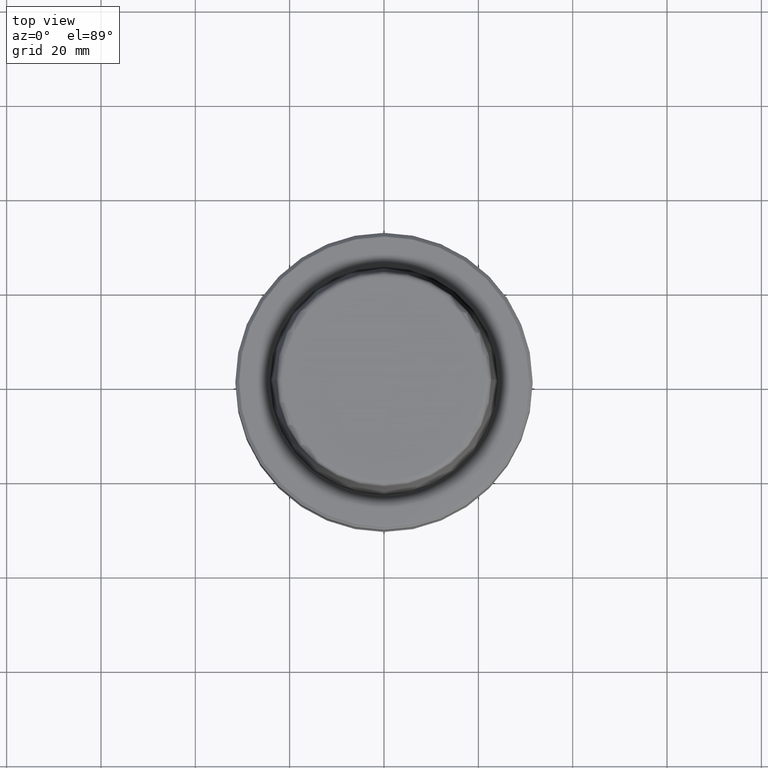
[diagram: clean part render]
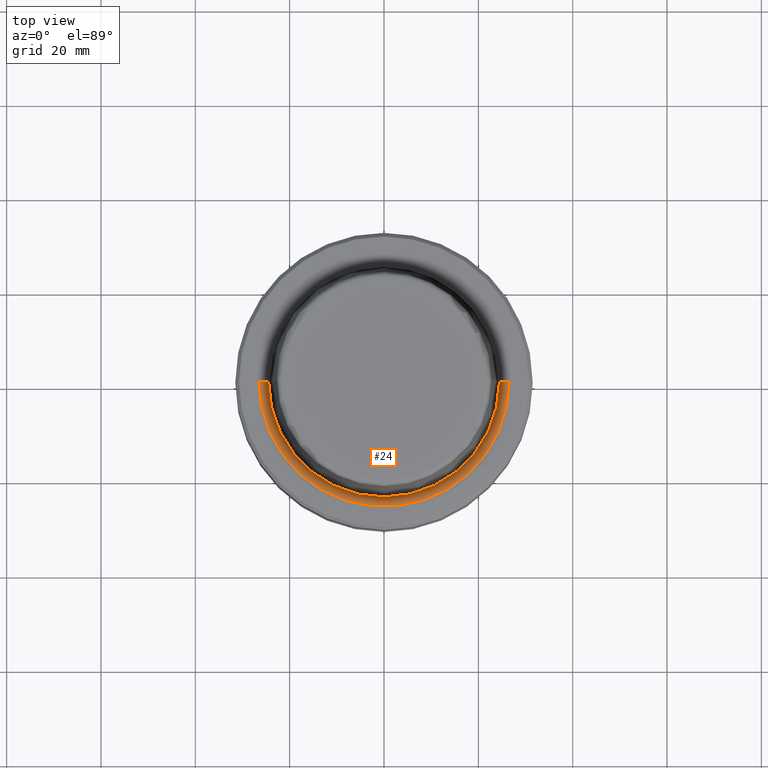
[diagram: same view with one face highlighted and labeled with its STEP entity id]
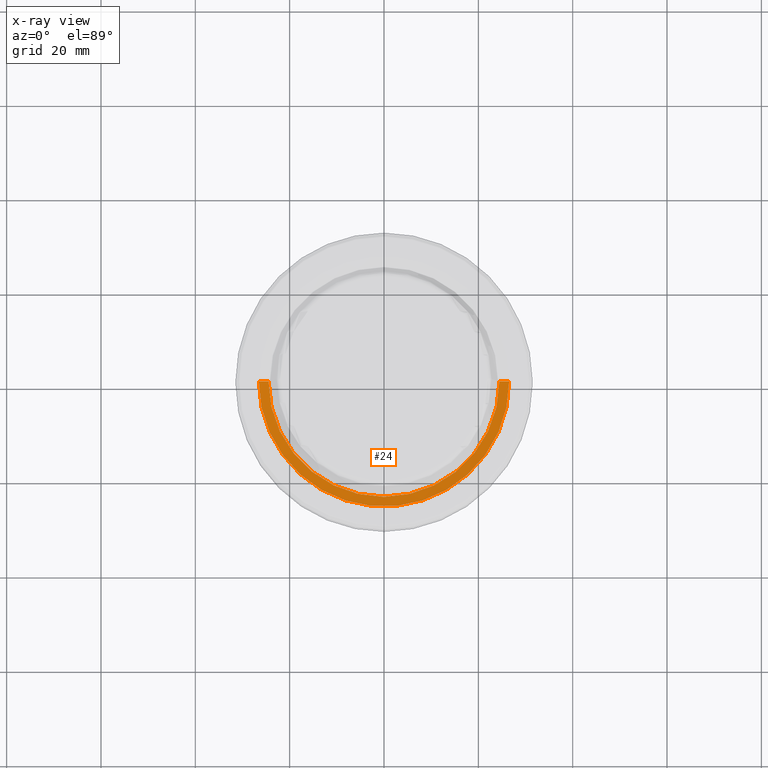
[diagram: x-ray of the same camera — body ghosted, the highlighted face saturated]
A machine part, top view. The second image highlights one B-rep face of the part: STEP entity #24.
The next image is the same camera in x-ray: the body ghosted, the highlighted face saturated — about 0% of this face is hidden behind the body in this view.
In plain terms, the highlighted conical surface has half-angle 80 deg.
Its self-contained STEP definition (entity closure, byte-faithful):
#23 = CARTESIAN_POINT ( 'NONE',  ( 0.0000000000000000000, 0.0000000000000000000, 0.0000000000000000000 ) ) ;
#24 = ADVANCED_FACE ( 'NONE', ( #737 ), #1106, .F. ) ;
#80 = EDGE_LOOP ( 'NONE', ( #151, #535, #1015, #675 ) ) ;
#129 = AXIS2_PLACEMENT_3D ( 'NONE', #381, #583, #962 ) ;
#151 = ORIENTED_EDGE ( 'NONE', *, *, #665, .F. ) ;
#175 = AXIS2_PLACEMENT_3D ( 'NONE', #23, #498, #1178 ) ;
#188 = CIRCLE ( 'NONE', #129, 24.47682408883346700 ) ;
#195 = DIRECTION ( 'NONE',  ( -0.0000000000000000000, -0.0000000000000000000, 1.000000000000000000 ) ) ;
#215 = EDGE_CURVE ( 'NONE', #849, #1240, #885, .T. ) ;
#222 = CARTESIAN_POINT ( 'NONE',  ( -26.52499999999999900, 3.248375634738354300E-015, 0.0000000000000000000 ) ) ;
#253 = VERTEX_POINT ( 'NONE', #1204 ) ;
#260 = VECTOR ( 'NONE', #1061, 1000.000000000000200 ) ;
#317 = CARTESIAN_POINT ( 'NONE',  ( 26.52499999999999900, 0.0000000000000000000, 0.0000000000000000000 ) ) ;
#381 = CARTESIAN_POINT ( 'NONE',  ( 0.0000000000000000000, 0.0000000000000000000, -0.3611486743758107700 ) ) ;
#400 = CARTESIAN_POINT ( 'NONE',  ( -26.52499999999999900, 3.248375634738354300E-015, 0.0000000000000000000 ) ) ;
#434 = VECTOR ( 'NONE', #784, 1000.000000000000200 ) ;
#435 = CARTESIAN_POINT ( 'NONE',  ( 24.47682408883346700, 0.0000000000000000000, -0.3611486743758107700 ) ) ;
#480 = CARTESIAN_POINT ( 'NONE',  ( 26.52499999999999900, 0.0000000000000000000, 0.0000000000000000000 ) ) ;
#498 = DIRECTION ( 'NONE',  ( -0.0000000000000000000, -0.0000000000000000000, 1.000000000000000000 ) ) ;
#535 = ORIENTED_EDGE ( 'NONE', *, *, #1206, .T. ) ;
#583 = DIRECTION ( 'NONE',  ( -0.0000000000000000000, -0.0000000000000000000, 1.000000000000000000 ) ) ;
#657 = VERTEX_POINT ( 'NONE', #400 ) ;
#665 = EDGE_CURVE ( 'NONE', #253, #849, #188, .T. ) ;
#675 = ORIENTED_EDGE ( 'NONE', *, *, #215, .F. ) ;
#737 = FACE_OUTER_BOUND ( 'NONE', #80, .T. ) ;
#753 = DIRECTION ( 'NONE',  ( 1.000000000000000000, 0.0000000000000000000, 0.0000000000000000000 ) ) ;
#784 = DIRECTION ( 'NONE',  ( -0.9848077530122074700, 1.206041662501897100E-016, 0.1736481776669334700 ) ) ;
#819 = AXIS2_PLACEMENT_3D ( 'NONE', #1054, #195, #753 ) ;
#849 = VERTEX_POINT ( 'NONE', #435 ) ;
#850 = LINE ( 'NONE', #222, #434 ) ;
#885 = LINE ( 'NONE', #480, #260 ) ;
#925 = EDGE_CURVE ( 'NONE', #657, #1240, #1156, .T. ) ;
#962 = DIRECTION ( 'NONE',  ( 1.000000000000000000, 0.0000000000000000000, 0.0000000000000000000 ) ) ;
#1015 = ORIENTED_EDGE ( 'NONE', *, *, #925, .T. ) ;
#1054 = CARTESIAN_POINT ( 'NONE',  ( 0.0000000000000000000, 0.0000000000000000000, 0.0000000000000000000 ) ) ;
#1061 = DIRECTION ( 'NONE',  ( 0.9848077530122074700, 0.0000000000000000000, 0.1736481776669334700 ) ) ;
#1106 = CONICAL_SURFACE ( 'NONE', #175, 26.52499999999999900, 1.396263401595460500 ) ;
#1156 = CIRCLE ( 'NONE', #819, 26.52499999999999900 ) ;
#1178 = DIRECTION ( 'NONE',  ( 1.000000000000000000, 0.0000000000000000000, 0.0000000000000000000 ) ) ;
#1204 = CARTESIAN_POINT ( 'NONE',  ( -24.47682408883346700, 3.122961031053313900E-015, -0.3611486743758107700 ) ) ;
#1206 = EDGE_CURVE ( 'NONE', #253, #657, #850, .T. ) ;
#1240 = VERTEX_POINT ( 'NONE', #317 ) ;